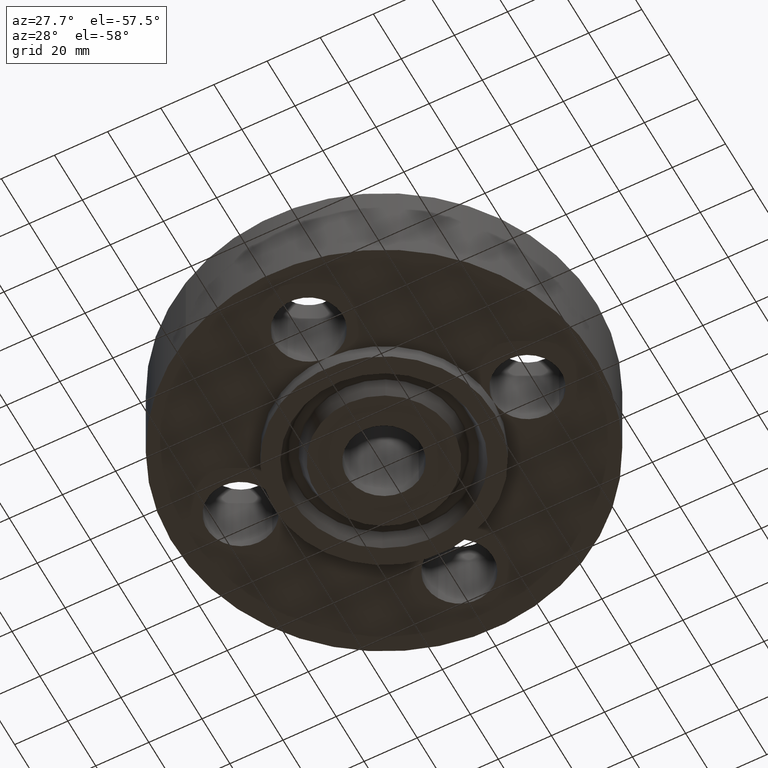
[diagram: clean part render]
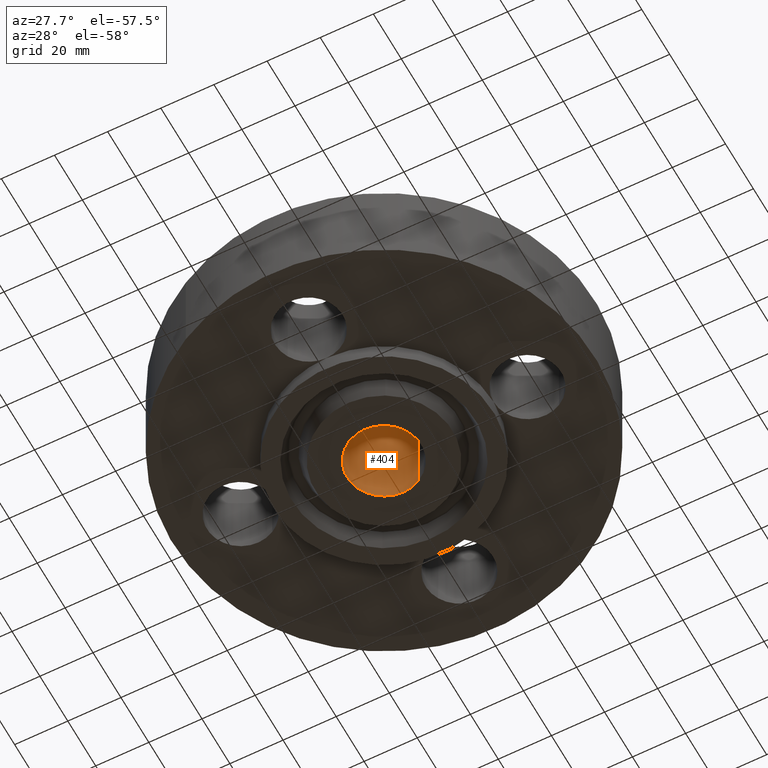
[diagram: same view with one face highlighted and labeled with its STEP entity id]
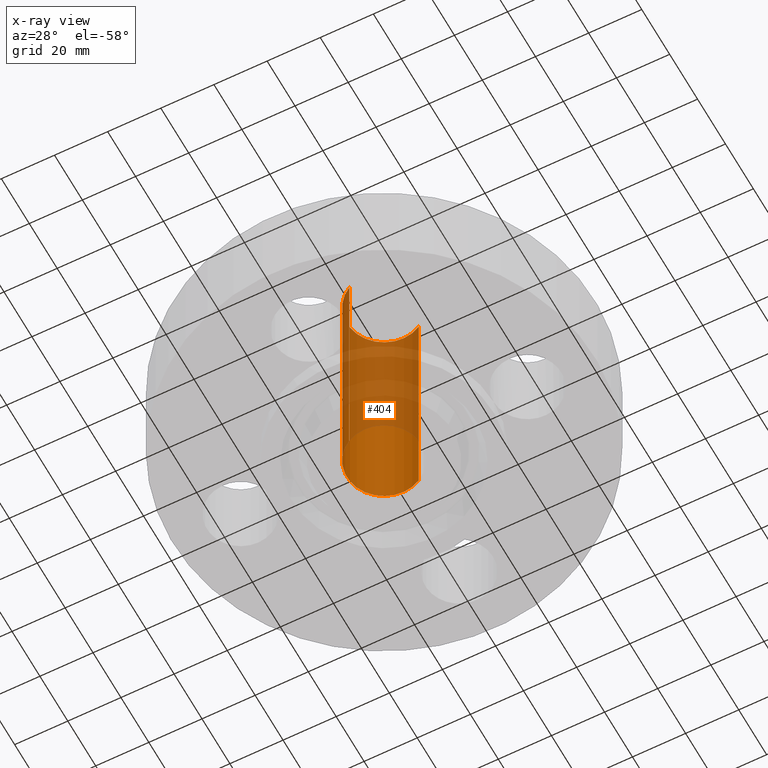
[diagram: x-ray of the same camera — body ghosted, the highlighted face saturated]
A machine part, auxiliary view. The second image highlights one B-rep face of the part: STEP entity #404.
The next image is the same camera in x-ray: the body ghosted, the highlighted face saturated — about 61% of this face is hidden behind the body in this view.
In plain terms, the highlighted cylindrical surface (partial cylindrical patch) has radius 13.9319 mm, axis along (0, 0, -1).
Its self-contained STEP definition (entity closure, byte-faithful):
#351=AXIS2_PLACEMENT_3D('Cylinder Axis2P3D',#348,#349,#350) ;
#390=AXIS2_PLACEMENT_3D('Circle Axis2P3D',#388,#389,$) ;
#395=AXIS2_PLACEMENT_3D('Circle Axis2P3D',#393,#394,$) ;
#348=CARTESIAN_POINT('Axis2P3D Location',(0.,0.,1.62500000001)) ;
#357=CARTESIAN_POINT('Vertex',(0.262964907925,0.481354035199,3.50000000001)) ;
#359=CARTESIAN_POINT('Vertex',(-0.262964907925,-0.481354035199,3.50000000001)) ;
#362=CARTESIAN_POINT('Line Origine',(0.262964907925,0.481354035199,1.62500000001)) ;
#366=CARTESIAN_POINT('Vertex',(0.262964907925,0.481354035199,-0.250000000001)) ;
#373=CARTESIAN_POINT('Vertex',(-0.262964907925,-0.481354035199,-0.250000000001)) ;
#376=CARTESIAN_POINT('Line Origine',(-0.262964907925,-0.481354035199,1.62500000001)) ;
#388=CARTESIAN_POINT('Axis2P3D Location',(0.,0.,3.50000000001)) ;
#393=CARTESIAN_POINT('Axis2P3D Location',(0.,0.,-0.250000000001)) ;
#349=DIRECTION('Axis2P3D Direction',(0.,0.,-0.0393700787402)) ;
#350=DIRECTION('Axis2P3D XDirection',(-0.0188750212049,-0.0345504945626,0.)) ;
#363=DIRECTION('Vector Direction',(0.,0.,-0.0393700787402)) ;
#377=DIRECTION('Vector Direction',(0.,0.,-0.0393700787402)) ;
#389=DIRECTION('Axis2P3D Direction',(0.,0.,-0.0393700787402)) ;
#394=DIRECTION('Axis2P3D Direction',(0.,0.,-0.0393700787402)) ;
#364=VECTOR('Line Direction',#363,0.0393700787402) ;
#378=VECTOR('Line Direction',#377,0.0393700787402) ;
#399=ORIENTED_EDGE('',*,*,#392,.F.) ;
#400=ORIENTED_EDGE('',*,*,#380,.T.) ;
#401=ORIENTED_EDGE('',*,*,#397,.T.) ;
#402=ORIENTED_EDGE('',*,*,#368,.F.) ;
#404=ADVANCED_FACE('PartBody',(#403),#352,.F.) ;
#391=CIRCLE('generated circle',#390,0.548500000002) ;
#396=CIRCLE('generated circle',#395,0.548500000002) ;
#352=CYLINDRICAL_SURFACE('generated cylinder',#351,0.548500000002) ;
#368=EDGE_CURVE('',#358,#367,#365,.T.) ;
#380=EDGE_CURVE('',#360,#374,#379,.T.) ;
#392=EDGE_CURVE('',#360,#358,#391,.T.) ;
#397=EDGE_CURVE('',#374,#367,#396,.T.) ;
#398=EDGE_LOOP('',(#399,#400,#401,#402)) ;
#403=FACE_OUTER_BOUND('',#398,.T.) ;
#365=LINE('Line',#362,#364) ;
#379=LINE('Line',#376,#378) ;
#358=VERTEX_POINT('',#357) ;
#360=VERTEX_POINT('',#359) ;
#367=VERTEX_POINT('',#366) ;
#374=VERTEX_POINT('',#373) ;